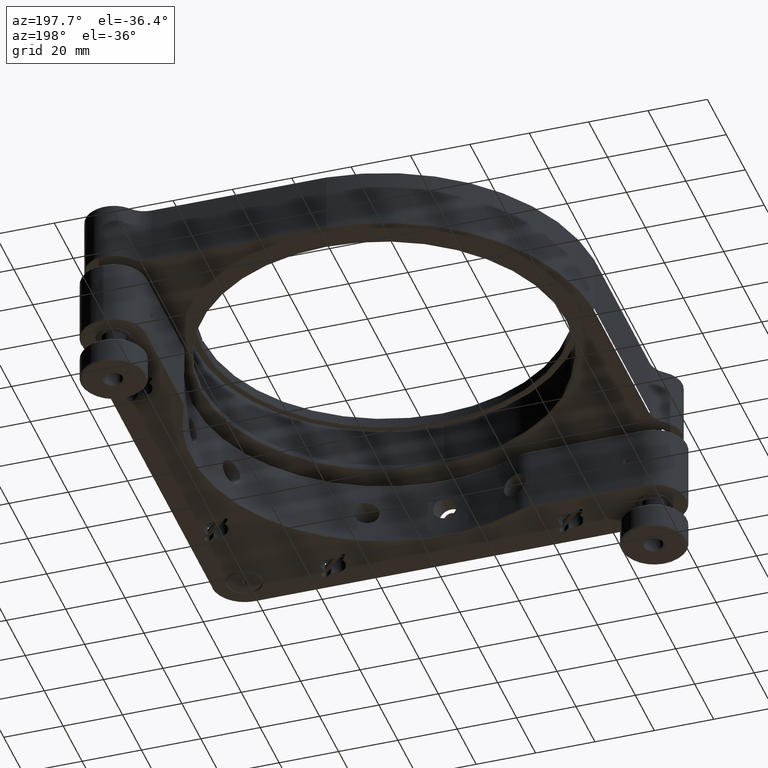
[diagram: clean part render]
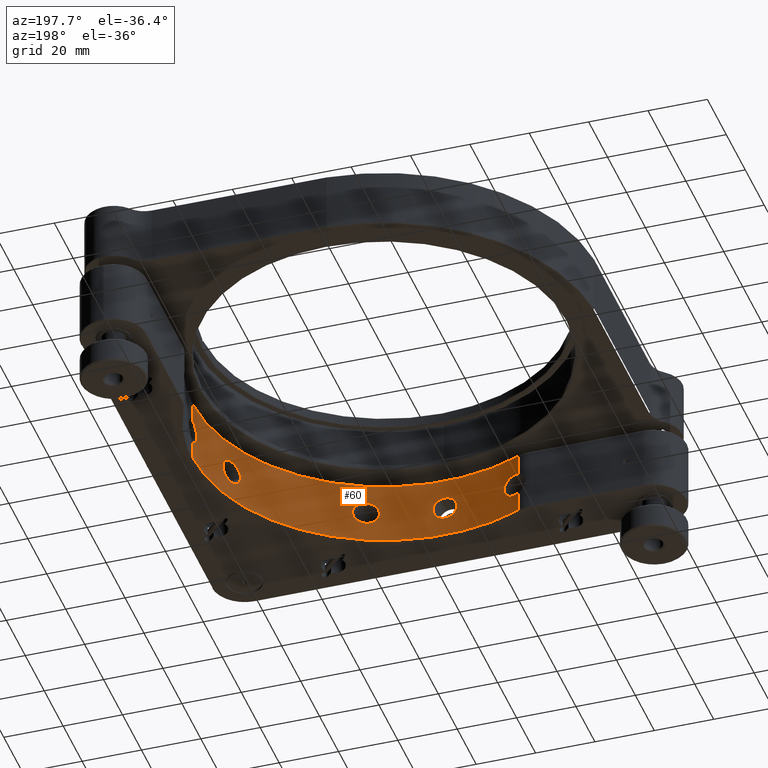
[diagram: same view with one face highlighted and labeled with its STEP entity id]
A machine part, auxiliary view. The second image highlights one B-rep face of the part: STEP entity #60.
In plain terms, the highlighted cylindrical surface (partial cylindrical patch) has radius 64.5 mm, axis along (-0, -0, 1).
Its self-contained STEP definition (entity closure, byte-faithful):
#2 = FACE_OUTER_BOUND ( 'NONE', #15340, .T. ) ;
#31 = CARTESIAN_POINT ( 'NONE',  ( 64.42973244834199420, -3.015708030127655981, -2.641067343378854293 ) ) ;
#38 = CARTESIAN_POINT ( 'NONE',  ( -22.03572104634548623, -60.61944673419696983, 2.698443176763219320 ) ) ;
#60 = ADVANCED_FACE ( 'NONE', ( #2, #6667, #5277, #14519 ), #7957, .F. ) ;
#92 = CARTESIAN_POINT ( 'NONE',  ( 64.50000000000000000, 0.000000000000000000, -11.00000000000000000 ) ) ;
#120 = CARTESIAN_POINT ( 'NONE',  ( 4.898587360805097508E-16, -64.50000000000000000, -3.999999999999994227 ) ) ;
#137 = LINE ( 'NONE', #1433, #7123 ) ;
#223 = DIRECTION ( 'NONE',  ( -0.000000000000000000, -0.000000000000000000, 1.000000000000000000 ) ) ;
#232 = CARTESIAN_POINT ( 'NONE',  ( 25.00000000000000355, -59.45796834739646641, 3.999999999999998224 ) ) ;
#289 = CARTESIAN_POINT ( 'NONE',  ( 64.50000000000000000, 2.370974895287332187E-14, 3.999999999999994227 ) ) ;
#351 = CARTESIAN_POINT ( 'NONE',  ( 0.5205040695360999559, -64.49841537628986998, -3.974694163092237442 ) ) ;
#403 = CARTESIAN_POINT ( 'NONE',  ( 60.40595516458225234, -22.61470669316513238, 3.221444331029537977 ) ) ;
#525 = CARTESIAN_POINT ( 'NONE',  ( 2.444876057769252764, -64.45401657771111559, 3.176724142946913521 ) ) ;
#573 = CARTESIAN_POINT ( 'NONE',  ( 59.66984763493015720, -24.49608352113407861, 3.999999999999994671 ) ) ;
#606 = CARTESIAN_POINT ( 'NONE',  ( 3.974419494474847880, -64.37745382917013615, 0.5214299164517759433 ) ) ;
#693 = CARTESIAN_POINT ( 'NONE',  ( 4.898587360805097508E-16, -64.50000000000000000, -3.999999999999994227 ) ) ;
#751 = LINE ( 'NONE', #7493, #3802 ) ;
#772 = CARTESIAN_POINT ( 'NONE',  ( 28.97027733589670007, -57.62791928229420080, -0.5589651288339740898 ) ) ;
#777 = CARTESIAN_POINT ( 'NONE',  ( 21.13616191515853515, -60.93862488407741296, -1.069940835157415782 ) ) ;
#852 = CARTESIAN_POINT ( 'NONE',  ( 26.24571311659869721, -58.91925429189734587, -3.809430682947913649 ) ) ;
#857 = CARTESIAN_POINT ( 'NONE',  ( 21.43284658031275924, -60.83498786485139931, 1.829590225628582090 ) ) ;
#991 = CARTESIAN_POINT ( 'NONE',  ( -1.774149975116680933, -64.47605052337830500, 3.594599014968412387 ) ) ;
#1124 = EDGE_LOOP ( 'NONE', ( #12216, #15393 ) ) ;
#1125 = DIRECTION ( 'NONE',  ( -0.000000000000000000, -0.000000000000000000, 1.000000000000000000 ) ) ;
#1157 = CARTESIAN_POINT ( 'NONE',  ( -21.13548959396507954, -60.93885767496141170, 1.067126035570103770 ) ) ;
#1168 = CARTESIAN_POINT ( 'NONE',  ( -26.34920718611778057, -58.87248322147656410, -3.765586271608850399 ) ) ;
#1254 = CARTESIAN_POINT ( 'NONE',  ( -24.00519719574110766, -59.86711496944655408, 3.882459483971177683 ) ) ;
#1329 = CARTESIAN_POINT ( 'NONE',  ( 64.37747591282841597, -3.974067724863392659, -0.5246045854408535325 ) ) ;
#1339 = CARTESIAN_POINT ( 'NONE',  ( -24.49725954983975384, -59.66745787244813215, -3.976262618382377934 ) ) ;
#1420 = CARTESIAN_POINT ( 'NONE',  ( -3.796330732962050369, -64.38825938876179578, -1.287077816999251390 ) ) ;
#1433 = CARTESIAN_POINT ( 'NONE',  ( -26.34920718611778412, -58.87248322147657120, -11.00000000000000000 ) ) ;
#1444 = ORIENTED_EDGE ( 'NONE', *, *, #3297, .T. ) ;
#1461 = CARTESIAN_POINT ( 'NONE',  ( 58.30628166095335985, -27.58027141491123402, -3.067704045311445249 ) ) ;
#1582 = CARTESIAN_POINT ( 'NONE',  ( 64.38370638821295699, -3.871821068206148464, 1.038417298750254680 ) ) ;
#1645 = CARTESIAN_POINT ( 'NONE',  ( 2.774096476893451257E-16, -64.50000000000000000, 3.999999999999994227 ) ) ;
#1731 = CARTESIAN_POINT ( 'NONE',  ( 3.796601520070425728, -64.38824355788729292, 1.286340591259432342 ) ) ;
#1753 = CARTESIAN_POINT ( 'NONE',  ( 26.00040544761010253, -59.02798046991024705, -3.881145295541913232 ) ) ;
#1787 = CARTESIAN_POINT ( 'NONE',  ( 59.56272008543876950, -24.75086697900585264, -3.999999999999990674 ) ) ;
#1826 = CARTESIAN_POINT ( 'NONE',  ( 3.014826396358292637, -64.42976713480601347, 2.641766282354409245 ) ) ;
#1874 = CARTESIAN_POINT ( 'NONE',  ( 60.62026561490692700, -22.03347055698377233, 2.696019025252962553 ) ) ;
#1907 = CARTESIAN_POINT ( 'NONE',  ( 3.999783634452077408, -64.37586295284894788, -0.2671797164588741169 ) ) ;
#1991 = CARTESIAN_POINT ( 'NONE',  ( 2.002658525779760001, -64.46927438414030576, -3.472558023559610962 ) ) ;
#2040 = CARTESIAN_POINT ( 'NONE',  ( 60.14923537348451532, -23.28913020883516083, -3.624534057263819609 ) ) ;
#2087 = CARTESIAN_POINT ( 'NONE',  ( 21.86796587124796076, -60.68004489562925130, 2.502082534310893891 ) ) ;
#2128 = CARTESIAN_POINT ( 'NONE',  ( -4.000093068911476202, -64.37584372611198091, -0.2595334232876710945 ) ) ;
#2159 = CARTESIAN_POINT ( 'NONE',  ( 26.25199197860860068, -58.91645911699274762, 3.807415148432315544 ) ) ;
#2208 = CARTESIAN_POINT ( 'NONE',  ( -25.45649923363773937, -59.26446886865214481, -3.980471007397444083 ) ) ;
#2285 = B_SPLINE_CURVE_WITH_KNOTS ( 'NONE', 3,
 ( #6132, #3784, #7758, #14063 ),
 .UNSPECIFIED., .F., .F.,
 ( 4, 4 ),
 ( 0.01694788674403594278, 0.01843579961038261869 ),
 .UNSPECIFIED. ) ;
#2339 = CARTESIAN_POINT ( 'NONE',  ( 57.83654876991681704, -28.55151458427474864, 1.845176213688141997 ) ) ;
#2427 = CARTESIAN_POINT ( 'NONE',  ( 0.000000000000000000, 0.000000000000000000, -11.00000000000000000 ) ) ;
#2544 = CARTESIAN_POINT ( 'NONE',  ( -23.28885317616903095, -60.14934363930181860, -3.624420083960666616 ) ) ;
#2623 = B_SPLINE_CURVE_WITH_KNOTS ( 'NONE', 3,
 ( #9614, #3543, #8650, #1753, #852, #8896, #13907, #4925, #10013, #16768, #10181, #6226, #11303, #6142, #13995, #772, #11377, #7355, #10906, #16596, #11469, #4357, #15464, #8813, #12599, #8324, #6058, #2159, #12289, #14154, #4756, #16678 ),
 .UNSPECIFIED., .F., .F.,
 ( 4, 2, 2, 2, 2, 2, 2, 2, 2, 2, 2, 2, 2, 2, 2, 4 ),
 ( 0.01295341170891674103, 0.01377296502973278901, 0.01459251835054883699, 0.01541207167136488497, 0.01623162499218093122, 0.01705117831299697920, 0.01787073163381303065, 0.01869028495462907863, 0.01950983827544512314, 0.02032939159626117459, 0.02114894491707721910, 0.02196849823789327055, 0.02278805155870931853, 0.02442715820034140062, 0.02524671152115744860, 0.02606626484197349311 ),
 .UNSPECIFIED. ) ;
#2627 = CARTESIAN_POINT ( 'NONE',  ( 64.50000000000001421, -0.2643575348152644167, 3.999999999999993339 ) ) ;
#2637 = CARTESIAN_POINT ( 'NONE',  ( -22.04140638547120545, -60.61738053243173141, -2.704654069234087466 ) ) ;
#2723 = CARTESIAN_POINT ( 'NONE',  ( -21.13837663756575580, -60.93785681797781706, -1.077234286522528395 ) ) ;
#2781 = CARTESIAN_POINT ( 'NONE',  ( 64.50000000000000000, 0.000000000000000000, -11.00000000000000000 ) ) ;
#2842 = CARTESIAN_POINT ( 'NONE',  ( 59.24228381743238003, -25.50833320996263964, -3.975607504384754520 ) ) ;
#2876 = CARTESIAN_POINT ( 'NONE',  ( 64.50000000000000000, 2.402658685813380001E-14, -3.999999999999994227 ) ) ;
#2943 = CARTESIAN_POINT ( 'NONE',  ( 3.473291743564308920, -64.40657794858771013, 2.001114599261276439 ) ) ;
#2963 = CARTESIAN_POINT ( 'NONE',  ( 64.39978162547933493, -3.595567584045256115, 1.771939371322442724 ) ) ;
#2992 = CARTESIAN_POINT ( 'NONE',  ( 60.93909545271478834, -21.13480328037946876, 1.064496492453653298 ) ) ;
#3111 = CARTESIAN_POINT ( 'NONE',  ( 3.596018069005574969, -64.39975734130834439, 1.771301574071494578 ) ) ;
#3163 = CARTESIAN_POINT ( 'NONE',  ( 60.97579854891647244, -21.02868136999636306, -0.5500808112852361154 ) ) ;
#3190 = CIRCLE ( 'NONE', #6505, 64.50000000000000000 ) ;
#3291 = EDGE_CURVE ( 'NONE', #15138, #15563, #3190, .T. ) ;
#3297 = EDGE_CURVE ( 'NONE', #7972, #13489, #2285, .T. ) ;
#3420 = CARTESIAN_POINT ( 'NONE',  ( -0.2643575348152878979, -64.50000000000001421, 3.999999999999993339 ) ) ;
#3435 = DIRECTION ( 'NONE',  ( -0.000000000000000000, -0.000000000000000000, 1.000000000000000000 ) ) ;
#3467 = CARTESIAN_POINT ( 'NONE',  ( 21.42830336517380729, -60.83658740665268994, -1.820774259933392036 ) ) ;
#3543 = CARTESIAN_POINT ( 'NONE',  ( 25.25249312391689571, -59.35180380337703099, -3.999999999999995559 ) ) ;
#3550 = CARTESIAN_POINT ( 'NONE',  ( 22.03858047737056225, -60.61841104910052280, 2.701692393528253966 ) ) ;
#3577 = VERTEX_POINT ( 'NONE', #15799 ) ;
#3723 = CARTESIAN_POINT ( 'NONE',  ( 57.62816816267336861, -28.96978125868384524, 0.5614515964771041867 ) ) ;
#3725 = EDGE_CURVE ( 'NONE', #13296, #15927, #16321, .T. ) ;
#3767 = CARTESIAN_POINT ( 'NONE',  ( -3.871821068206170668, -64.38370638821295699, 1.038417298750256679 ) ) ;
#3784 = CARTESIAN_POINT ( 'NONE',  ( -25.46291696951060146, -59.26332792224523871, 3.999999999999998224 ) ) ;
#3802 = VECTOR ( 'NONE', #3435, 1000.000000000000000 ) ;
#3813 = DIRECTION ( 'NONE',  ( 1.000000000000000000, 0.000000000000000000, 0.000000000000000000 ) ) ;
#3846 = CARTESIAN_POINT ( 'NONE',  ( -21.21787982265905370, -60.91029558922183185, 1.329467044252198527 ) ) ;
#3847 = CARTESIAN_POINT ( 'NONE',  ( -25.90821599919762619, -59.06839228601500480, -3.902266609272733611 ) ) ;
#3873 = EDGE_CURVE ( 'NONE', #16277, #9850, #10502, .T. ) ;
#3919 = EDGE_CURVE ( 'NONE', #11390, #7972, #6609, .T. ) ;
#3932 = CARTESIAN_POINT ( 'NONE',  ( -0.5262702985060538907, -64.49836244403104502, -3.973834887155166751 ) ) ;
#3974 = CARTESIAN_POINT ( 'NONE',  ( 58.12850965576144091, -27.95299707900300135, 2.710706639544202989 ) ) ;
#3992 = CARTESIAN_POINT ( 'NONE',  ( -25.00000000000000000, -59.45796834739646641, -3.999999999999991562 ) ) ;
#4013 = CARTESIAN_POINT ( 'NONE',  ( 64.44612449973942603, -2.642338973711011008, -3.014593900220479572 ) ) ;
#4023 = CARTESIAN_POINT ( 'NONE',  ( -21.02698878883040123, -60.97638098132924256, 0.5370107727638255835 ) ) ;
#4106 = CARTESIAN_POINT ( 'NONE',  ( -1.288324084847046302, -64.48758786332498971, -3.795923029655674963 ) ) ;
#4114 = ORIENTED_EDGE ( 'NONE', *, *, #15922, .T. ) ;
#4181 = CARTESIAN_POINT ( 'NONE',  ( 64.37585532358941975, -3.999906419533604041, 0.2623943458436627796 ) ) ;
#4268 = CARTESIAN_POINT ( 'NONE',  ( 64.49219197431914097, -1.035642674061848512, 3.872389425423051090 ) ) ;
#4305 = CARTESIAN_POINT ( 'NONE',  ( 60.15205343635862789, -23.28185412852842617, 3.621127226529509358 ) ) ;
#4328 = CARTESIAN_POINT ( 'NONE',  ( 58.40172096966005455, -27.37782363238761008, -3.226659605918556384 ) ) ;
#4339 = CARTESIAN_POINT ( 'NONE',  ( 2.008458258435794175, -64.46909156612829861, 3.469162815775037156 ) ) ;
#4357 = CARTESIAN_POINT ( 'NONE',  ( 28.56499409025695968, -57.82997101138371931, 1.834282225641236774 ) ) ;
#4381 = B_SPLINE_CURVE_WITH_KNOTS ( 'NONE', 3,
 ( #289, #2627, #15770, #4268, #11774, #9537, #14801, #11860, #7905, #14711, #15859, #10732, #2963, #9193, #1582, #10476, #4181, #5304, #1329, #8067, #17062, #5222, #6607, #6781, #31, #4013, #9451, #9284, #13240, #14630, #6695, #11943, #5395, #2876 ),
 .UNSPECIFIED., .F., .F.,
 ( 4, 2, 2, 2, 2, 2, 2, 2, 2, 2, 2, 2, 2, 2, 2, 2, 4 ),
 ( 1.681378713152049946E-19, 0.0007818015441923827167, 0.001563603088384765217, 0.002345404632577147500, 0.003127206176769529999, 0.003909007720961912499, 0.004690809265154294999, 0.005472610809346677499, 0.006254412353539059999, 0.007036213897731442499, 0.007818015441923824999, 0.008599816986116207498, 0.009381618530308589998, 0.01016342007450097250, 0.01094522161869335500, 0.01172702316288573750, 0.01250882470707812000 ),
 .UNSPECIFIED. ) ;
#4409 = CARTESIAN_POINT ( 'NONE',  ( 58.60145991147439304, -26.94763691509908554, -3.503153991212887508 ) ) ;
#4474 = CARTESIAN_POINT ( 'NONE',  ( 60.83440630308029995, -21.43449637128341578, -1.832643954598887959 ) ) ;
#4599 = CARTESIAN_POINT ( 'NONE',  ( 2.440488939760133480, -64.45418523667298416, -3.180143728320318441 ) ) ;
#4645 = CARTESIAN_POINT ( 'NONE',  ( 60.90871580472853708, -21.22241654377819131, -1.342111478975698935 ) ) ;
#4756 = CARTESIAN_POINT ( 'NONE',  ( 25.25531687064113484, -59.35061651645711578, 3.999999999999998224 ) ) ;
#4760 = CARTESIAN_POINT ( 'NONE',  ( 24.00169677056159401, -59.86852238204010490, -3.881617510120048742 ) ) ;
#4838 = EDGE_LOOP ( 'NONE', ( #11295, #16293 ) ) ;
#4896 = CARTESIAN_POINT ( 'NONE',  ( -3.178954330380944882, -64.42177955911338927, 2.442014385550366651 ) ) ;
#4925 = CARTESIAN_POINT ( 'NONE',  ( 27.37230892745532174, -58.40431140292412238, -3.230807543078391131 ) ) ;
#4931 = CARTESIAN_POINT ( 'NONE',  ( 21.22046144401348400, -60.90939728116654095, 1.336814204410422979 ) ) ;
#4937 = CARTESIAN_POINT ( 'NONE',  ( 58.40476335115121742, -27.37132405461949602, 3.231333073190844285 ) ) ;
#5013 = CARTESIAN_POINT ( 'NONE',  ( 24.00600655112025450, -59.86678783698332040, 3.882630933937385898 ) ) ;
#5046 = VECTOR ( 'NONE', #16190, 1000.000000000000000 ) ;
#5059 = CARTESIAN_POINT ( 'NONE',  ( -3.013398775420100595, -64.42983404858688345, 2.643387439788901450 ) ) ;
#5100 = CARTESIAN_POINT ( 'NONE',  ( 22.61916665431034801, -60.40428045544197744, -3.224616998800510892 ) ) ;
#5222 = CARTESIAN_POINT ( 'NONE',  ( 64.39976265514440001, -3.595920481541954317, -1.771454834725022076 ) ) ;
#5272 = CARTESIAN_POINT ( 'NONE',  ( 59.45796834739648062, -24.99999999999998224, 3.999999999999996447 ) ) ;
#5277 = FACE_BOUND ( 'NONE', #1124, .T. ) ;
#5304 = CARTESIAN_POINT ( 'NONE',  ( 64.37584372611198091, -4.000093068911454885, -0.2595334232876734815 ) ) ;
#5314 = CARTESIAN_POINT ( 'NONE',  ( -23.75864495256094244, -59.96533875294416305, 3.811086288293259461 ) ) ;
#5374 = AXIS2_PLACEMENT_3D ( 'NONE', #2427, #1125, #3813 ) ;
#5395 = CARTESIAN_POINT ( 'NONE',  ( 64.50000000000001421, -0.2610921744883882845, -3.999999999999994671 ) ) ;
#5404 = CARTESIAN_POINT ( 'NONE',  ( -24.75083668776886725, -59.56273282184643136, -3.999999999999994671 ) ) ;
#5490 = CARTESIAN_POINT ( 'NONE',  ( -25.00000000000000000, -59.45796834739646641, -3.999999999999991562 ) ) ;
#5596 = CARTESIAN_POINT ( 'NONE',  ( 59.86612699185302233, -24.00766854383570603, -3.883130648881238933 ) ) ;
#5618 = CARTESIAN_POINT ( 'NONE',  ( 57.72370806873885840, -28.77912081078594753, -1.338306440399142927 ) ) ;
#5631 = CARTESIAN_POINT ( 'NONE',  ( 3.010952416556410327, -64.42994856798061676, -2.646158225914166273 ) ) ;
#5757 = EDGE_LOOP ( 'NONE', ( #10007, #12868 ) ) ;
#5777 = CARTESIAN_POINT ( 'NONE',  ( 60.61701275489764384, -22.04241204438680057, -2.705670771393139606 ) ) ;
#5852 = EDGE_CURVE ( 'NONE', #9675, #3577, #7890, .T. ) ;
#5857 = CARTESIAN_POINT ( 'NONE',  ( 60.78816115428843148, -21.56561618602806263, -2.067953018855976488 ) ) ;
#6058 = CARTESIAN_POINT ( 'NONE',  ( 26.95598951850605474, -58.59939914363482671, 3.525575288025842635 ) ) ;
#6063 = CARTESIAN_POINT ( 'NONE',  ( 23.28484318039078360, -60.15090621179889752, 3.622696473066113310 ) ) ;
#6132 = CARTESIAN_POINT ( 'NONE',  ( -25.00000000000000000, -59.45796834739646641, 3.999999999999998224 ) ) ;
#6142 = CARTESIAN_POINT ( 'NONE',  ( 28.77214448112514589, -57.72718609095003472, -1.357382267780091079 ) ) ;
#6226 = CARTESIAN_POINT ( 'NONE',  ( 28.42633174280741670, -57.89838236256569104, -2.081154510102082078 ) ) ;
#6408 = CARTESIAN_POINT ( 'NONE',  ( 58.92029152640517253, -26.24341468724673021, 3.810382686682205033 ) ) ;
#6445 = CARTESIAN_POINT ( 'NONE',  ( -1.773027214888615921, -64.47608193642756191, -3.595161344075063603 ) ) ;
#6477 = CARTESIAN_POINT ( 'NONE',  ( -26.34920718611778412, -58.87248322147657120, -10.69999999999997620 ) ) ;
#6505 = AXIS2_PLACEMENT_3D ( 'NONE', #9923, #9055, #10090 ) ;
#6534 = CARTESIAN_POINT ( 'NONE',  ( -24.49882432284004352, -59.66681283569594285, 3.976423921648994941 ) ) ;
#6588 = CARTESIAN_POINT ( 'NONE',  ( 4.898587360805097508E-16, -64.50000000000000000, -3.999999999999994227 ) ) ;
#6593 = DIRECTION ( 'NONE',  ( -0.000000000000000000, -0.000000000000000000, 1.000000000000000000 ) ) ;
#6607 = CARTESIAN_POINT ( 'NONE',  ( 64.40672066297483411, -3.470642195402570795, -2.005634960861393701 ) ) ;
#6609 = B_SPLINE_CURVE_WITH_KNOTS ( 'NONE', 3,
 ( #5490, #5404, #1339, #10484, #7990, #2544, #11784, #9376, #14384, #2637, #10407, #14558, #12989, #14467, #2723, #14720, #11952, #15870, #4023, #1157, #3846, #6619, #13334, #11870, #38, #7820, #12037, #10654, #13075, #5314, #1254, #6534, #17073, #15956 ),
 .UNSPECIFIED., .F., .F.,
 ( 4, 2, 2, 2, 2, 2, 2, 2, 2, 2, 2, 2, 2, 2, 2, 2, 4 ),
 ( 0.003996553875328090304, 0.004806012179622331029, 0.005615470483916571755, 0.006424928788210812480, 0.007234387092505053206, 0.008043845396799293931, 0.008853303701093533790, 0.009662762005387775383, 0.01047222030968201698, 0.01128167861397625683, 0.01209113691827049669, 0.01290059522256473828, 0.01371005352685897988, 0.01451951183115322147, 0.01532897013544745959, 0.01613842843974170119, 0.01694788674403594278 ),
 .UNSPECIFIED. ) ;
#6619 = CARTESIAN_POINT ( 'NONE',  ( -21.42919146076337711, -60.83627442795231133, 1.822427511237994180 ) ) ;
#6667 = FACE_BOUND ( 'NONE', #4838, .T. ) ;
#6695 = CARTESIAN_POINT ( 'NONE',  ( 64.49214148002225500, -1.038944517035043313, -3.871552457087975352 ) ) ;
#6702 = CARTESIAN_POINT ( 'NONE',  ( -1.038944517035067294, -64.49214148002225500, -3.871552457087975352 ) ) ;
#6743 = CARTESIAN_POINT ( 'NONE',  ( 58.91892335749631826, -26.24647078334198724, -3.809284391099271971 ) ) ;
#6781 = CARTESIAN_POINT ( 'NONE',  ( 64.42167362424173405, -3.181036192603613255, -2.439044400187125650 ) ) ;
#6804 = CARTESIAN_POINT ( 'NONE',  ( 2.774096476893451257E-16, -64.50000000000000000, 3.999999999999994227 ) ) ;
#7094 = ORIENTED_EDGE ( 'NONE', *, *, #9336, .T. ) ;
#7102 = CARTESIAN_POINT ( 'NONE',  ( 2.646014056816118565, -64.44596714191384024, 3.011098952524620564 ) ) ;
#7123 = VECTOR ( 'NONE', #223, 1000.000000000000000 ) ;
#7316 = CARTESIAN_POINT ( 'NONE',  ( 60.23658967323800084, -23.06203601199325703, -3.508724944046596850 ) ) ;
#7355 = CARTESIAN_POINT ( 'NONE',  ( 29.00086914464045762, -57.61249508438846334, 0.2613752511371380538 ) ) ;
#7377 = CARTESIAN_POINT ( 'NONE',  ( 64.50000000000000000, 2.370974895287332187E-14, 3.999999999999994227 ) ) ;
#7403 = CARTESIAN_POINT ( 'NONE',  ( -3.999906419533629354, -64.37585532358941975, 0.2623943458436648890 ) ) ;
#7438 = CARTESIAN_POINT ( 'NONE',  ( 23.05751781269478329, -60.23831295921672790, 3.506102236761104329 ) ) ;
#7482 = CARTESIAN_POINT ( 'NONE',  ( -1.289728197603364324, -64.48755926846466480, 3.795438234107515019 ) ) ;
#7493 = CARTESIAN_POINT ( 'NONE',  ( -26.34920718611778412, -58.87248322147657120, -11.00000000000000000 ) ) ;
#7610 = CARTESIAN_POINT ( 'NONE',  ( 21.02864207491793280, -60.97581190835014553, 0.5495196019251561426 ) ) ;
#7616 = CARTESIAN_POINT ( 'NONE',  ( 57.80648253118425828, -28.61230866834689124, 1.723207329418859013 ) ) ;
#7694 = CARTESIAN_POINT ( 'NONE',  ( 24.75057698316463473, -59.56284201856618665, -3.999999999999994227 ) ) ;
#7706 = CARTESIAN_POINT ( 'NONE',  ( 59.45796834739647352, -24.99999999999997868, -3.999999999999989786 ) ) ;
#7758 = CARTESIAN_POINT ( 'NONE',  ( -25.91435014848365981, -59.06710959960737739, 3.921395273923580227 ) ) ;
#7820 = CARTESIAN_POINT ( 'NONE',  ( -22.41274607168930544, -60.48106429221028435, 3.061807048744252580 ) ) ;
#7821 = CARTESIAN_POINT ( 'NONE',  ( -26.13326013845264484, -58.96913335730916828, -3.842959962586920408 ) ) ;
#7871 = VERTEX_POINT ( 'NONE', #232 ) ;
#7890 = LINE ( 'NONE', #92, #8519 ) ;
#7905 = CARTESIAN_POINT ( 'NONE',  ( 64.44602953991447691, -2.644496974590845983, 3.012425117395753471 ) ) ;
#7913 = CARTESIAN_POINT ( 'NONE',  ( -0.2610921744884118212, -64.50000000000001421, -3.999999999999994671 ) ) ;
#7953 = CARTESIAN_POINT ( 'NONE',  ( 57.93588059888185171, -28.34944081388316306, 2.190550920695672588 ) ) ;
#7957 = CYLINDRICAL_SURFACE ( 'NONE', #5374, 64.50000000000000000 ) ;
#7972 = VERTEX_POINT ( 'NONE', #15350 ) ;
#7990 = CARTESIAN_POINT ( 'NONE',  ( -23.76078242960118558, -59.96448482921480405, -3.811664231138299552 ) ) ;
#8034 = EDGE_CURVE ( 'NONE', #16147, #11390, #8293, .T. ) ;
#8067 = CARTESIAN_POINT ( 'NONE',  ( 64.38370135574812991, -3.871901202567078037, -1.037692310092970249 ) ) ;
#8221 = CARTESIAN_POINT ( 'NONE',  ( 1.294269094188635671, -64.48746205220571426, 3.793773685848543131 ) ) ;
#8293 = B_SPLINE_CURVE_WITH_KNOTS ( 'NONE', 3,
 ( #8782, #7821, #3847, #2208, #11785, #12825 ),
 .UNSPECIFIED., .F., .F.,
 ( 4, 2, 4 ),
 ( 0.002508315295065935771, 0.003252434585197013037, 0.003996553875328090304 ),
 .UNSPECIFIED. ) ;
#8294 = CARTESIAN_POINT ( 'NONE',  ( 58.70675803735949927, -26.71765930859727334, -3.621323443934112429 ) ) ;
#8306 = CARTESIAN_POINT ( 'NONE',  ( 3.470603170637406532, -64.40672399359755218, -2.005816507284809092 ) ) ;
#8324 = CARTESIAN_POINT ( 'NONE',  ( 27.39718518429368999, -58.39363114238998520, 3.243892840581997117 ) ) ;
#8354 = CARTESIAN_POINT ( 'NONE',  ( 60.91133065517708189, -21.21491381251774300, 1.321677525362207728 ) ) ;
#8377 = CARTESIAN_POINT ( 'NONE',  ( 59.35174723956404108, -25.25262765069304649, -3.999999999999989786 ) ) ;
#8484 = CARTESIAN_POINT ( 'NONE',  ( 1.775358031357968880, -64.47601102955530905, 3.593877450345444924 ) ) ;
#8519 = VECTOR ( 'NONE', #6593, 1000.000000000000000 ) ;
#8576 = ORIENTED_EDGE ( 'NONE', *, *, #3291, .T. ) ;
#8618 = CARTESIAN_POINT ( 'NONE',  ( 59.66528781280857174, -24.50254558469523047, -3.976929023740270797 ) ) ;
#8650 = CARTESIAN_POINT ( 'NONE',  ( 25.50306893235275041, -59.24455280300360727, -3.976307522566200348 ) ) ;
#8698 = CARTESIAN_POINT ( 'NONE',  ( -1.035642674061871826, -64.49219197431914097, 3.872389425423051090 ) ) ;
#8732 = CARTESIAN_POINT ( 'NONE',  ( 64.50000000000000000, 2.402658685813380001E-14, -3.999999999999994227 ) ) ;
#8738 = CARTESIAN_POINT ( 'NONE',  ( 21.56032621320875364, -60.79003247630142681, -2.058885590679017774 ) ) ;
#8771 = ORIENTED_EDGE ( 'NONE', *, *, #14898, .T. ) ;
#8782 = CARTESIAN_POINT ( 'NONE',  ( -26.34920718611778057, -58.87248322147656410, -3.765586271608850399 ) ) ;
#8813 = CARTESIAN_POINT ( 'NONE',  ( 28.13197069490656332, -58.04197269918041968, 2.502199395278279059 ) ) ;
#8816 = EDGE_CURVE ( 'NONE', #15927, #13296, #10114, .T. ) ;
#8818 = CARTESIAN_POINT ( 'NONE',  ( 23.05300518802830112, -60.24004273965860534, -3.503674272967777448 ) ) ;
#8896 = CARTESIAN_POINT ( 'NONE',  ( 26.71416669312124625, -58.70834081460827036, -3.622871215658220123 ) ) ;
#8907 = CARTESIAN_POINT ( 'NONE',  ( 58.70685636623740322, -26.71745840452159371, 3.621523565043651249 ) ) ;
#8990 = CARTESIAN_POINT ( 'NONE',  ( 24.49855065063926318, -59.66692259928333186, 3.976354422785908227 ) ) ;
#8996 = CARTESIAN_POINT ( 'NONE',  ( 57.61323789304415044, -28.99939344066194380, 0.2827066715341506331 ) ) ;
#9036 = CARTESIAN_POINT ( 'NONE',  ( -3.974522113908526944, -64.37744807487999310, 0.5219988856319847104 ) ) ;
#9055 = DIRECTION ( 'NONE',  ( -0.000000000000000000, -0.000000000000000000, -1.000000000000000000 ) ) ;
#9121 = CARTESIAN_POINT ( 'NONE',  ( -2.006843899109826079, -64.46913641598746381, -3.469938448844113399 ) ) ;
#9193 = CARTESIAN_POINT ( 'NONE',  ( 64.38833498399910127, -3.795035921987986338, 1.290572639528824839 ) ) ;
#9202 = CARTESIAN_POINT ( 'NONE',  ( -3.181036192603638124, -64.42167362424173405, -2.439044400187123873 ) ) ;
#9249 = CARTESIAN_POINT ( 'NONE',  ( 59.35054267089127222, -25.25549249893373727, 3.999999999999996447 ) ) ;
#9284 = CARTESIAN_POINT ( 'NONE',  ( 64.46913641598746381, -2.006843899109801654, -3.469938448844114731 ) ) ;
#9335 = CARTESIAN_POINT ( 'NONE',  ( 57.82990436191744266, -28.56512610401509988, -1.833765004955505651 ) ) ;
#9336 = EDGE_CURVE ( 'NONE', #9675, #15372, #4381, .T. ) ;
#9376 = CARTESIAN_POINT ( 'NONE',  ( -22.62213826862076260, -60.40316853421260390, -3.226817256591818506 ) ) ;
#9419 = CARTESIAN_POINT ( 'NONE',  ( 57.89548526859510247, -28.43221968663322485, -2.071184375683160273 ) ) ;
#9451 = CARTESIAN_POINT ( 'NONE',  ( 64.45419404190160151, -2.440049808404804121, -3.180259770311943957 ) ) ;
#9461 = CARTESIAN_POINT ( 'NONE',  ( -3.871901202567102462, -64.38370135574812991, -1.037692310092968473 ) ) ;
#9513 = CARTESIAN_POINT ( 'NONE',  ( 3.593557875236568666, -64.39989493842351465, -1.776214499395773139 ) ) ;
#9526 = ORIENTED_EDGE ( 'NONE', *, *, #5852, .F. ) ;
#9537 = CARTESIAN_POINT ( 'NONE',  ( 64.47605052337830500, -1.774149975116657840, 3.594599014968411055 ) ) ;
#9562 = CARTESIAN_POINT ( 'NONE',  ( 59.87475655156248422, -23.99001010799288380, 3.903622794727016121 ) ) ;
#9596 = CARTESIAN_POINT ( 'NONE',  ( 2.641946005826700361, -64.44613431564141592, -3.014649086317749749 ) ) ;
#9614 = CARTESIAN_POINT ( 'NONE',  ( 25.00000000000000355, -59.45796834739647352, -3.999999999999991562 ) ) ;
#9675 = VERTEX_POINT ( 'NONE', #7377 ) ;
#9732 = CARTESIAN_POINT ( 'NONE',  ( 60.93740453758170617, -21.13968252036898221, -1.082547697061654990 ) ) ;
#9810 = CARTESIAN_POINT ( 'NONE',  ( 0.000000000000000000, 0.000000000000000000, 10.70000000000003304 ) ) ;
#9820 = CARTESIAN_POINT ( 'NONE',  ( 59.96454978066785912, -23.76061597477481868, -3.811594130098631794 ) ) ;
#9850 = VERTEX_POINT ( 'NONE', #6588 ) ;
#9853 = CARTESIAN_POINT ( 'NONE',  ( 0.2610323619897433334, -64.50000000000000000, -3.999999999999994671 ) ) ;
#9902 = CARTESIAN_POINT ( 'NONE',  ( 60.47886648886000671, -22.41867240236574332, -3.066713007774147570 ) ) ;
#9923 = CARTESIAN_POINT ( 'NONE',  ( 0.000000000000000000, 0.000000000000000000, -10.69999999999997620 ) ) ;
#10007 = ORIENTED_EDGE ( 'NONE', *, *, #11778, .T. ) ;
#10013 = CARTESIAN_POINT ( 'NONE',  ( 27.57663071629432849, -58.30799361599494546, -3.070420897928499926 ) ) ;
#10052 = DIRECTION ( 'NONE',  ( 0.000000000000000000, 0.000000000000000000, 1.000000000000000000 ) ) ;
#10066 = CARTESIAN_POINT ( 'NONE',  ( -2.003893528420819692, -64.46923086722190988, 3.471706487800660046 ) ) ;
#10072 = EDGE_CURVE ( 'NONE', #9850, #16277, #13808, .T. ) ;
#10090 = DIRECTION ( 'NONE',  ( 1.000000000000000000, 0.000000000000000000, 0.000000000000000000 ) ) ;
#10114 = B_SPLINE_CURVE_WITH_KNOTS ( 'NONE', 3,
 ( #5272, #9249, #10526, #11566, #6408, #8907, #15823, #4937, #11652, #3974, #10193, #7953, #14165, #2339, #7616, #16866, #10275, #3723, #8996, #14258, #12946, #16947, #5618, #9335, #9419, #11997, #14597, #1461, #4328, #4409, #8294, #6743, #14677, #2842, #8377, #16173 ),
 .UNSPECIFIED., .F., .F.,
 ( 4, 2, 2, 2, 2, 2, 2, 2, 2, 2, 2, 2, 2, 2, 2, 2, 2, 4 ),
 ( 0.000000000000000000, 0.0008197477432859421372, 0.001639495486571884274, 0.002459243229857826629, 0.003278990973143768549, 0.004098738716429710903, 0.004508612588072682080, 0.004918486459715654124, 0.005738234203001602550, 0.006557981946287550976, 0.007377729689573497666, 0.008197477432859446092, 0.009017225176145393650, 0.009836972919431342943, 0.01065672066271729050, 0.01147646840600323806, 0.01229621614928918562, 0.01311596389257513318 ),
 .UNSPECIFIED. ) ;
#10151 = CARTESIAN_POINT ( 'NONE',  ( -2.438688949292132424, -64.45424822378275564, 3.181372568449735816 ) ) ;
#10181 = CARTESIAN_POINT ( 'NONE',  ( 28.12012175255922486, -58.04771975861965672, -2.517100227621990705 ) ) ;
#10193 = CARTESIAN_POINT ( 'NONE',  ( 58.04634020175171827, -28.12295521622025873, 2.513208929824747528 ) ) ;
#10270 = CARTESIAN_POINT ( 'NONE',  ( 23.75916912338757214, -59.96512933928379141, -3.811227871280546076 ) ) ;
#10275 = CARTESIAN_POINT ( 'NONE',  ( 57.68481310665212192, -28.85682464880649079, 1.095123173594120480 ) ) ;
#10317 = CARTESIAN_POINT ( 'NONE',  ( -3.471359784762710010, -64.40668516111030328, 2.004705998049312043 ) ) ;
#10407 = CARTESIAN_POINT ( 'NONE',  ( -21.86642603335892332, -60.68059969916172491, -2.500173769251795797 ) ) ;
#10476 = CARTESIAN_POINT ( 'NONE',  ( 64.37744807487999310, -3.974522113908504295, 0.5219988856319824899 ) ) ;
#10484 = CARTESIAN_POINT ( 'NONE',  ( -24.00255767558757469, -59.86817584863162267, -3.881819313162727880 ) ) ;
#10502 = B_SPLINE_CURVE_WITH_KNOTS ( 'NONE', 3,
 ( #11607, #3420, #16904, #8698, #7482, #991, #10066, #10151, #16739, #5059, #4896, #10317, #15608, #13959, #3767, #9036, #7403, #2128, #12649, #9461, #1420, #15779, #13252, #9202, #15695, #10567, #16993, #9121, #6445, #4106, #6702, #3932, #7913, #120 ),
 .UNSPECIFIED., .F., .F.,
 ( 4, 2, 2, 2, 2, 2, 2, 2, 2, 2, 2, 2, 2, 2, 2, 2, 4 ),
 ( 2.695806477389857130E-19, 0.0007818015441923824999, 0.001563603088384764783, 0.002345404632577147066, 0.003127206176769529566, 0.003909007720961911632, 0.004690809265154293264, 0.005472610809346675764, 0.006254412353539058264, 0.007036213897731440764, 0.007818015441923823264, 0.008599816986116205764, 0.009381618530308586529, 0.01016342007450096903, 0.01094522161869335153, 0.01172702316288573403, 0.01250882470707811653 ),
 .UNSPECIFIED. ) ;
#10526 = CARTESIAN_POINT ( 'NONE',  ( 59.24307124316095496, -25.50648818502914494, 3.975750376351419924 ) ) ;
#10567 = CARTESIAN_POINT ( 'NONE',  ( -2.642338973711036765, -64.44612449973942603, -3.014593900220477796 ) ) ;
#10654 = CARTESIAN_POINT ( 'NONE',  ( -23.05585557212309666, -60.23895457094648975, 3.505306033952801936 ) ) ;
#10732 = CARTESIAN_POINT ( 'NONE',  ( 64.40668516111030328, -3.471359784762686918, 2.004705998049311155 ) ) ;
#10843 = CARTESIAN_POINT ( 'NONE',  ( 60.98540296471446709, -21.00072917314095022, -0.2814859865110190262 ) ) ;
#10879 = CARTESIAN_POINT ( 'NONE',  ( 3.794486399995329329, -64.38836850893885355, -1.292466290001029305 ) ) ;
#10906 = CARTESIAN_POINT ( 'NONE',  ( 28.97274490400996427, -57.62667653521523192, 0.5401313136454800601 ) ) ;
#10921 = ORIENTED_EDGE ( 'NONE', *, *, #16335, .T. ) ;
#10939 = CARTESIAN_POINT ( 'NONE',  ( 60.83661885401254210, -21.42821916698808593, 1.821013621213547706 ) ) ;
#10972 = CARTESIAN_POINT ( 'NONE',  ( 3.873180625673453115, -64.38362403349086094, 1.032652563421216918 ) ) ;
#11020 = CARTESIAN_POINT ( 'NONE',  ( 60.40156108635526522, -22.62643716566552499, -3.230023935399227053 ) ) ;
#11232 = ORIENTED_EDGE ( 'NONE', *, *, #3919, .T. ) ;
#11295 = ORIENTED_EDGE ( 'NONE', *, *, #8816, .T. ) ;
#11303 = CARTESIAN_POINT ( 'NONE',  ( 28.55780559525388895, -57.83352013845949813, -1.847587603808528600 ) ) ;
#11308 = CARTESIAN_POINT ( 'NONE',  ( 21.21682653959347675, -60.91066264609190739, -1.326587473685941765 ) ) ;
#11377 = CARTESIAN_POINT ( 'NONE',  ( 28.99908874297642569, -57.61339126514095454, -0.2873328387815033969 ) ) ;
#11381 = CARTESIAN_POINT ( 'NONE',  ( 24.49697531210356516, -59.66757595740764941, -3.976245716268600461 ) ) ;
#11390 = VERTEX_POINT ( 'NONE', #3992 ) ;
#11422 = CARTESIAN_POINT ( 'NONE',  ( 64.50000000000000000, 0.000000000000000000, -10.69999999999997620 ) ) ;
#11469 = CARTESIAN_POINT ( 'NONE',  ( 28.78023442790442132, -57.72315428689566374, 1.335515562229267150 ) ) ;
#11566 = CARTESIAN_POINT ( 'NONE',  ( 59.02815915271765590, -25.99997801723515067, 3.881129384815583006 ) ) ;
#11607 = CARTESIAN_POINT ( 'NONE',  ( 2.774096476893451257E-16, -64.50000000000000000, 3.999999999999994227 ) ) ;
#11652 = CARTESIAN_POINT ( 'NONE',  ( 58.30843884408883326, -27.57570742635363104, 3.071457876659897224 ) ) ;
#11774 = CARTESIAN_POINT ( 'NONE',  ( 64.48755926846466480, -1.289728197603340787, 3.795438234107515019 ) ) ;
#11778 = EDGE_CURVE ( 'NONE', #7871, #14093, #12132, .T. ) ;
#11784 = CARTESIAN_POINT ( 'NONE',  ( -23.05641681776333485, -60.23873797103197347, -3.505575621024801691 ) ) ;
#11785 = CARTESIAN_POINT ( 'NONE',  ( -25.22905099131175888, -59.36166040176776448, -3.999999999999994671 ) ) ;
#11860 = CARTESIAN_POINT ( 'NONE',  ( 64.45424822378275564, -2.438688949292109776, 3.181372568449734928 ) ) ;
#11870 = CARTESIAN_POINT ( 'NONE',  ( -21.86432841913067904, -60.68136029994761316, 2.497926912786613496 ) ) ;
#11943 = CARTESIAN_POINT ( 'NONE',  ( 64.49836244403104502, -0.5262702985060299099, -3.973834887155166751 ) ) ;
#11952 = CARTESIAN_POINT ( 'NONE',  ( -21.00031776820392082, -60.98554462940806076, -0.2773856256899548400 ) ) ;
#11997 = CARTESIAN_POINT ( 'NONE',  ( 58.04308772068012701, -28.12966936607172030, -2.505016238362326231 ) ) ;
#12037 = CARTESIAN_POINT ( 'NONE',  ( -22.62070858032656417, -60.40370574134583848, 3.225808470504580860 ) ) ;
#12090 = EDGE_CURVE ( 'NONE', #15138, #15372, #12188, .T. ) ;
#12132 = B_SPLINE_CURVE_WITH_KNOTS ( 'NONE', 3,
 ( #16857, #13911, #8990, #5013, #16682, #6063, #7438, #16772, #15298, #3550, #2087, #12768, #857, #4931, #12604, #7610, #12941, #16941, #14252, #777, #11308, #3467, #8738, #15553, #16600, #14000, #5100, #8818, #12859, #10270, #4760, #11381, #7694, #14079 ),
 .UNSPECIFIED., .F., .F.,
 ( 4, 2, 2, 2, 2, 2, 2, 2, 2, 2, 2, 2, 2, 2, 2, 2, 4 ),
 ( 3.576224061345498009E-18, 0.0008095882318072996752, 0.001619176463614595664, 0.002428764695421891870, 0.003238352927229187859, 0.004047941159036483848, 0.004857529390843780270, 0.005667117622651075826, 0.006476705854458372248, 0.007286294086265668671, 0.008095882318072964226, 0.008905470549880259781, 0.009715058781687557071, 0.01052464701349485263, 0.01133423524530214818, 0.01214382347710944547, 0.01295341170891674103 ),
 .UNSPECIFIED. ) ;
#12188 = LINE ( 'NONE', #2781, #5046 ) ;
#12216 = ORIENTED_EDGE ( 'NONE', *, *, #3873, .T. ) ;
#12289 = CARTESIAN_POINT ( 'NONE',  ( 26.00705473631457565, -59.02505520957835472, 3.879482884341172610 ) ) ;
#12350 = CARTESIAN_POINT ( 'NONE',  ( 0.5257870283740940787, -64.49837582446471629, 3.974059800872914217 ) ) ;
#12400 = CARTESIAN_POINT ( 'NONE',  ( 60.24085721341614885, -23.05088936150226431, 3.502612661492636725 ) ) ;
#12436 = CARTESIAN_POINT ( 'NONE',  ( 3.179909813423138498, -64.42173046056736041, -2.440606442552724076 ) ) ;
#12599 = CARTESIAN_POINT ( 'NONE',  ( 27.95852118592084423, -58.12584684630763121, 2.704530788270231412 ) ) ;
#12604 = CARTESIAN_POINT ( 'NONE',  ( 21.13926549416060041, -60.93754901343582731, 1.080918423116718596 ) ) ;
#12649 = CARTESIAN_POINT ( 'NONE',  ( -3.974067724863417084, -64.37747591282841597, -0.5246045854408515341 ) ) ;
#12768 = CARTESIAN_POINT ( 'NONE',  ( 21.56559261562085794, -60.78816492557351836, 2.067583301899385884 ) ) ;
#12825 = CARTESIAN_POINT ( 'NONE',  ( -25.00000000000000000, -59.45796834739646641, -3.999999999999991562 ) ) ;
#12859 = CARTESIAN_POINT ( 'NONE',  ( 23.28491631680702412, -60.15087302965820015, -3.622651944477363717 ) ) ;
#12868 = ORIENTED_EDGE ( 'NONE', *, *, #15424, .T. ) ;
#12941 = CARTESIAN_POINT ( 'NONE',  ( 21.00039826419367373, -60.98551691113967621, 0.2760369268876311510 ) ) ;
#12946 = CARTESIAN_POINT ( 'NONE',  ( 57.62650619514327843, -28.97308556502970234, -0.5392111306376655699 ) ) ;
#12989 = CARTESIAN_POINT ( 'NONE',  ( -21.43446509115111809, -60.83441903217437385, -1.832956016139475564 ) ) ;
#13075 = CARTESIAN_POINT ( 'NONE',  ( -23.28363080421123144, -60.15137237262656811, 3.622073692564348413 ) ) ;
#13240 = CARTESIAN_POINT ( 'NONE',  ( 64.47608193642756191, -1.773027214888592384, -3.595161344075063159 ) ) ;
#13252 = CARTESIAN_POINT ( 'NONE',  ( -3.470642195402593444, -64.40672066297483411, -2.005634960861391924 ) ) ;
#13296 = VERTEX_POINT ( 'NONE', #7706 ) ;
#13334 = CARTESIAN_POINT ( 'NONE',  ( -21.55864904622780287, -60.79063247222589439, 2.056496714722960029 ) ) ;
#13481 = CARTESIAN_POINT ( 'NONE',  ( 1.036259253957745763, -64.49219082414097670, -3.872374586104767147 ) ) ;
#13489 = VERTEX_POINT ( 'NONE', #14173 ) ;
#13564 = CARTESIAN_POINT ( 'NONE',  ( 1.043188579729943388, -64.49208241001544195, 3.870576299111224916 ) ) ;
#13604 = DIRECTION ( 'NONE',  ( 1.000000000000000000, 0.000000000000000000, 0.000000000000000000 ) ) ;
#13654 = CARTESIAN_POINT ( 'NONE',  ( 4.000213710068837081, -64.37583623006538858, 0.2606614607014656748 ) ) ;
#13708 = CARTESIAN_POINT ( 'NONE',  ( 60.79091799012701358, -21.55782729351411930, 2.054707337353401719 ) ) ;
#13769 = ORIENTED_EDGE ( 'NONE', *, *, #8034, .T. ) ;
#13808 = B_SPLINE_CURVE_WITH_KNOTS ( 'NONE', 3,
 ( #693, #9853, #351, #13481, #15126, #16515, #1991, #4599, #9596, #5631, #12436, #8306, #9513, #10879, #16434, #14781, #1907, #13654, #606, #10972, #1731, #3111, #2943, #16183, #1826, #7102, #525, #4339, #8484, #8221, #13564, #12350, #14868, #1645 ),
 .UNSPECIFIED., .F., .F.,
 ( 4, 2, 2, 2, 2, 2, 2, 2, 2, 2, 2, 2, 2, 2, 2, 2, 4 ),
 ( 0.01250882470707811653, 0.01329044715167123844, 0.01407206959626436035, 0.01485369204085748226, 0.01563531448545060418, 0.01641693693004372609, 0.01719855937463684453, 0.01798018181922996644, 0.01876180426382308836, 0.01954342670841621027, 0.02032504915300933218, 0.02110667159760245409, 0.02188829404219557601, 0.02266991648678869792, 0.02345153893138181983, 0.02423316137597494174, 0.02501478382056806365 ),
 .UNSPECIFIED. ) ;
#13907 = CARTESIAN_POINT ( 'NONE',  ( 26.93962999927433088, -58.60514671914047113, -3.507677649615413173 ) ) ;
#13911 = CARTESIAN_POINT ( 'NONE',  ( 24.74778757085980985, -59.56401486906138132, 3.999999999999998224 ) ) ;
#13959 = CARTESIAN_POINT ( 'NONE',  ( -3.795035921988008987, -64.38833498399910127, 1.290572639528827059 ) ) ;
#13995 = CARTESIAN_POINT ( 'NONE',  ( 28.85650650312009091, -57.68497275860305962, -1.096768768054520837 ) ) ;
#14000 = CARTESIAN_POINT ( 'NONE',  ( 22.41479438175499439, -60.48031284833114540, -3.063794126665767781 ) ) ;
#14052 = CARTESIAN_POINT ( 'NONE',  ( 59.45796834739648062, -24.99999999999998224, 3.999999999999996447 ) ) ;
#14063 = CARTESIAN_POINT ( 'NONE',  ( -26.34920718611778057, -58.87248322147657120, 3.765586271608731384 ) ) ;
#14079 = CARTESIAN_POINT ( 'NONE',  ( 25.00000000000000355, -59.45796834739647352, -3.999999999999991562 ) ) ;
#14093 = VERTEX_POINT ( 'NONE', #16178 ) ;
#14154 = CARTESIAN_POINT ( 'NONE',  ( 25.50813071756829942, -59.24237761811118474, 3.975720043676774118 ) ) ;
#14165 = CARTESIAN_POINT ( 'NONE',  ( 57.90120759685517982, -28.42016040589673409, 2.078565346534271274 ) ) ;
#14173 = CARTESIAN_POINT ( 'NONE',  ( -26.34920718611778057, -58.87248322147657120, 3.765586271608731384 ) ) ;
#14204 = CARTESIAN_POINT ( 'NONE',  ( -26.34920718611778412, -58.87248322147657120, 10.70000000000003304 ) ) ;
#14252 = CARTESIAN_POINT ( 'NONE',  ( 21.02687125056500861, -60.97642190780186411, -0.5369041599967394607 ) ) ;
#14258 = CARTESIAN_POINT ( 'NONE',  ( 57.61263681988705088, -29.00058756485118039, -0.2652736159096983903 ) ) ;
#14384 = CARTESIAN_POINT ( 'NONE',  ( -22.41885556193414430, -60.47880069376590484, -3.066940364597388058 ) ) ;
#14467 = CARTESIAN_POINT ( 'NONE',  ( -21.22064602301914249, -60.90933438391588339, -1.337628670446660450 ) ) ;
#14519 = FACE_BOUND ( 'NONE', #5757, .T. ) ;
#14532 = CIRCLE ( 'NONE', #15362, 64.50000000000000000 ) ;
#14558 = CARTESIAN_POINT ( 'NONE',  ( -21.56412376416809806, -60.78868590129172134, -2.065165652656226758 ) ) ;
#14597 = CARTESIAN_POINT ( 'NONE',  ( 58.12596668112087883, -27.95828767703454787, -2.705021756683996248 ) ) ;
#14630 = CARTESIAN_POINT ( 'NONE',  ( 64.48758786332498971, -1.288324084847022322, -3.795923029655673631 ) ) ;
#14677 = CARTESIAN_POINT ( 'NONE',  ( 59.02612373950206859, -26.00461442407257451, -3.880026744781098103 ) ) ;
#14711 = CARTESIAN_POINT ( 'NONE',  ( 64.42983404858688345, -3.013398775420077946, 2.643387439788900561 ) ) ;
#14720 = CARTESIAN_POINT ( 'NONE',  ( -21.02880691775150979, -60.97575452633510196, -0.5497219341261768699 ) ) ;
#14781 = CARTESIAN_POINT ( 'NONE',  ( 3.973706946354993885, -64.37749811500255248, -0.5268854272377815340 ) ) ;
#14801 = CARTESIAN_POINT ( 'NONE',  ( 64.46923086722190988, -2.003893528420795711, 3.471706487800660046 ) ) ;
#14829 = CARTESIAN_POINT ( 'NONE',  ( 59.45796834739648062, -24.99999999999998224, 3.999999999999996447 ) ) ;
#14868 = CARTESIAN_POINT ( 'NONE',  ( 0.2642969742690742807, -64.50000000000001421, 3.999999999999994671 ) ) ;
#14898 = EDGE_CURVE ( 'NONE', #15134, #3577, #14532, .T. ) ;
#14921 = CARTESIAN_POINT ( 'NONE',  ( 59.45796834739647352, -24.99999999999997868, -3.999999999999989786 ) ) ;
#15126 = CARTESIAN_POINT ( 'NONE',  ( 1.288993971225673496, -64.48756826260157027, -3.795570008232140413 ) ) ;
#15134 = VERTEX_POINT ( 'NONE', #14204 ) ;
#15138 = VERTEX_POINT ( 'NONE', #11422 ) ;
#15172 = CARTESIAN_POINT ( 'NONE',  ( 60.98589553741614822, -20.99929870428014311, 0.2603663756967197207 ) ) ;
#15298 = CARTESIAN_POINT ( 'NONE',  ( 22.41775560903119313, -60.47921147823442567, 3.066131321970621215 ) ) ;
#15340 = EDGE_LOOP ( 'NONE', ( #15569, #8576, #4114, #13769, #11232, #1444, #10921, #8771, #9526, #7094 ) ) ;
#15350 = CARTESIAN_POINT ( 'NONE',  ( -25.00000000000000000, -59.45796834739646641, 3.999999999999998224 ) ) ;
#15362 = AXIS2_PLACEMENT_3D ( 'NONE', #9810, #10052, #13604 ) ;
#15372 = VERTEX_POINT ( 'NONE', #8732 ) ;
#15393 = ORIENTED_EDGE ( 'NONE', *, *, #10072, .T. ) ;
#15424 = EDGE_CURVE ( 'NONE', #14093, #7871, #2623, .T. ) ;
#15464 = CARTESIAN_POINT ( 'NONE',  ( 28.43472411347968531, -57.89425562680445125, 2.067102443461769301 ) ) ;
#15553 = CARTESIAN_POINT ( 'NONE',  ( 21.86232777467646571, -60.68207592990182064, -2.495070869029125227 ) ) ;
#15563 = VERTEX_POINT ( 'NONE', #6477 ) ;
#15569 = ORIENTED_EDGE ( 'NONE', *, *, #12090, .F. ) ;
#15608 = CARTESIAN_POINT ( 'NONE',  ( -3.595567584045278764, -64.39978162547933493, 1.771939371322444501 ) ) ;
#15695 = CARTESIAN_POINT ( 'NONE',  ( -3.015708030127681294, -64.42973244834199420, -2.641067343378851628 ) ) ;
#15770 = CARTESIAN_POINT ( 'NONE',  ( 64.49837600550122829, -0.5242843253010649462, 3.974051025931836012 ) ) ;
#15779 = CARTESIAN_POINT ( 'NONE',  ( -3.595920481541978297, -64.39976265514440001, -1.771454834725020744 ) ) ;
#15799 = CARTESIAN_POINT ( 'NONE',  ( 64.50000000000000000, 0.000000000000000000, 10.70000000000003304 ) ) ;
#15823 = CARTESIAN_POINT ( 'NONE',  ( 58.60361342428322473, -26.94294446091854311, 3.505660854061617204 ) ) ;
#15859 = CARTESIAN_POINT ( 'NONE',  ( 64.42177955911338927, -3.178954330380921789, 2.442014385550366207 ) ) ;
#15870 = CARTESIAN_POINT ( 'NONE',  ( -20.99968756978301698, -60.98576163402869099, 0.2681439936605186092 ) ) ;
#15922 = EDGE_CURVE ( 'NONE', #15563, #16147, #751, .T. ) ;
#15927 = VERTEX_POINT ( 'NONE', #14052 ) ;
#15956 = CARTESIAN_POINT ( 'NONE',  ( -25.00000000000000000, -59.45796834739646641, 3.999999999999998224 ) ) ;
#16144 = CARTESIAN_POINT ( 'NONE',  ( 60.68315828521757993, -21.85932131221276009, 2.491287330584176729 ) ) ;
#16147 = VERTEX_POINT ( 'NONE', #1168 ) ;
#16173 = CARTESIAN_POINT ( 'NONE',  ( 59.45796834739647352, -24.99999999999997868, -3.999999999999989786 ) ) ;
#16178 = CARTESIAN_POINT ( 'NONE',  ( 25.00000000000000355, -59.45796834739647352, -3.999999999999991562 ) ) ;
#16183 = CARTESIAN_POINT ( 'NONE',  ( 3.183584588614793542, -64.42154785279959128, 2.435775922046809594 ) ) ;
#16190 = DIRECTION ( 'NONE',  ( -0.000000000000000000, -0.000000000000000000, 1.000000000000000000 ) ) ;
#16233 = CARTESIAN_POINT ( 'NONE',  ( 60.48171800554248989, -22.41098425115183090, 3.060361575537149381 ) ) ;
#16277 = VERTEX_POINT ( 'NONE', #6804 ) ;
#16293 = ORIENTED_EDGE ( 'NONE', *, *, #3725, .T. ) ;
#16318 = CARTESIAN_POINT ( 'NONE',  ( 60.67886871709053054, -21.87124205930947696, -2.506450801119771032 ) ) ;
#16321 = B_SPLINE_CURVE_WITH_KNOTS ( 'NONE', 3,
 ( #14921, #1787, #8618, #5596, #9820, #2040, #7316, #11020, #9902, #5777, #16318, #5857, #4474, #4645, #9732, #3163, #10843, #15172, #16399, #2992, #8354, #10939, #13708, #16144, #1874, #16233, #403, #12400, #4305, #9562, #573, #14829 ),
 .UNSPECIFIED., .F., .F.,
 ( 4, 2, 2, 2, 2, 2, 2, 2, 2, 2, 2, 2, 2, 2, 2, 4 ),
 ( 0.01311596389257513318, 0.01392437196341641745, 0.01473278003425769998, 0.01554118810509898425, 0.01634959617594026679, 0.01715800424678155106, 0.01796641231762283533, 0.01877482038846411960, 0.01958322845930540387, 0.02039163653014668814, 0.02120004460098796895, 0.02200845267182925322, 0.02281686074267053749, 0.02362526881351182176, 0.02443367688435310603, 0.02605049302603566416 ),
 .UNSPECIFIED. ) ;
#16335 = EDGE_CURVE ( 'NONE', #13489, #15134, #137, .T. ) ;
#16399 = CARTESIAN_POINT ( 'NONE',  ( 60.97644215336220697, -21.02681066194054793, 0.5354110082377332436 ) ) ;
#16434 = CARTESIAN_POINT ( 'NONE',  ( 3.871711116179394452, -64.38371271894408210, -1.038175409937244220 ) ) ;
#16515 = CARTESIAN_POINT ( 'NONE',  ( 1.770380628692232339, -64.47614844507312171, -3.596332795334543420 ) ) ;
#16596 = CARTESIAN_POINT ( 'NONE',  ( 28.86260320921832445, -57.68192031958003696, 1.074588459110663585 ) ) ;
#16600 = CARTESIAN_POINT ( 'NONE',  ( 22.03346928343755451, -60.62027285276912636, -2.696260010994609768 ) ) ;
#16678 = CARTESIAN_POINT ( 'NONE',  ( 25.00000000000000355, -59.45796834739646641, 3.999999999999998224 ) ) ;
#16682 = CARTESIAN_POINT ( 'NONE',  ( 23.76123040304258183, -59.96431747105560106, 3.811973575127669989 ) ) ;
#16739 = CARTESIAN_POINT ( 'NONE',  ( -2.644496974590869076, -64.44602953991447691, 3.012425117395754359 ) ) ;
#16768 = CARTESIAN_POINT ( 'NONE',  ( 27.94958342738636503, -58.13014250301939967, -2.714123789268857223 ) ) ;
#16772 = CARTESIAN_POINT ( 'NONE',  ( 22.62499207453121386, -60.40209606861895963, 3.228827542093212877 ) ) ;
#16857 = CARTESIAN_POINT ( 'NONE',  ( 25.00000000000000355, -59.45796834739646641, 3.999999999999998224 ) ) ;
#16866 = CARTESIAN_POINT ( 'NONE',  ( 57.72615140475587481, -28.77422394850427523, 1.352073684695149547 ) ) ;
#16904 = CARTESIAN_POINT ( 'NONE',  ( -0.5242843253010883720, -64.49837600550122829, 3.974051025931836012 ) ) ;
#16941 = CARTESIAN_POINT ( 'NONE',  ( 20.99961024117478559, -60.98578826163025468, -0.2643713440539378623 ) ) ;
#16947 = CARTESIAN_POINT ( 'NONE',  ( 57.68252703353128652, -28.86139252432819546, -1.079724651711340355 ) ) ;
#16993 = CARTESIAN_POINT ( 'NONE',  ( -2.440049808404828546, -64.45419404190160151, -3.180259770311943512 ) ) ;
#17062 = CARTESIAN_POINT ( 'NONE',  ( 64.38825938876179578, -3.796330732962027277, -1.287077816999252722 ) ) ;
#17073 = CARTESIAN_POINT ( 'NONE',  ( -24.74816268234233263, -59.56385714777820795, 3.999999999999998224 ) ) ;